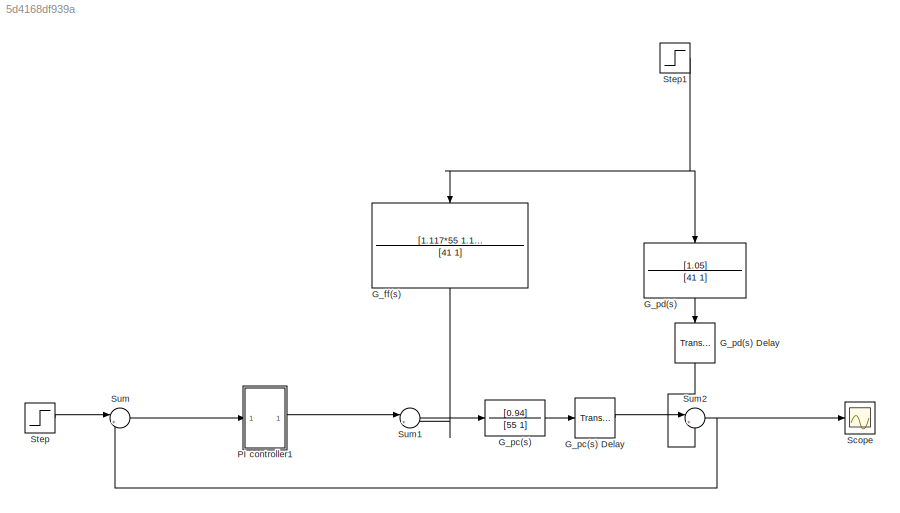
MODEL slx_5d4168df939a
KIND model
CONFIG AbsTol = auto
CONFIG EnableMultiTasking = off
CONFIG FixedStep = auto
CONFIG MaxStep = auto
CONFIG MinStep = auto
CONFIG RelTol = 1e-3
CONFIG SampleTimeConstraint = Unconstrained
CONFIG SolverName = VariableStepAuto
CONFIG StartTime = 0.0
CONFIG StopTime = 100.0
BLOCK [TransferFcn] G_ff(s) 
  Denominator = [41 1]
  NameLocation = left
  Numerator = [1.117*55 1.117]
BLOCK [TransferFcn] G_pc(s)
  Denominator = [55 1]
  Numerator = [0.94]
BLOCK [TransportDelay] G_pc(s) Delay
  DelayTime = 8
BLOCK [TransferFcn] G_pd(s)
  Denominator = [41 1]
  NameLocation = left
  Numerator = [1.05]
BLOCK [TransportDelay] G_pd(s) Delay
  DelayTime = 6
  NameLocation = left
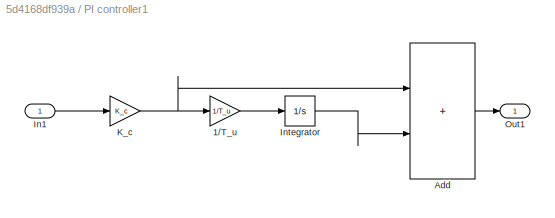
BLOCK [SubSystem] PI controller1
BLOCK [Gain] PI controller1/1//T_u
  Gain = 1/T_u
BLOCK [Sum] PI controller1/Add
  IconShape = rectangular
BLOCK [Inport] PI controller1/In1
BLOCK [Integrator] PI controller1/Integrator
BLOCK [Gain] PI controller1/K_c
  Gain = K_c
BLOCK [Outport] PI controller1/Out1
BLOCK [Scope] Scope
  Floating = off
  NumInputPorts = 1
  ScopeSpecificationString = Simulink.scopes.TimeScopeBlockCfg('CurrentConfiguration', extmgr.ConfigurationSet(extmgr.Configuration('Core','General UI',true),extmgr.Configuration('Core','Source UI',true),extmgr.Configuration('Sources','WiredSimulink',true),extmgr.Configuration('Visuals','Time Domain',true,'SerializedDisplays',{struct('MinYLimReal','-0.24935','MaxYLimReal','2.24416','YLabelReal','','MinYLimMag','0.00000','MaxY...<+1392ch>
BLOCK [Step] Step
  SampleTime = 0
BLOCK [Step] Step1
  SampleTime = 0
BLOCK [Sum] Sum
  Inputs = |+-
BLOCK [Sum] Sum1
  Inputs = |++
BLOCK [Sum] Sum2
  Inputs = |++
LINE G_ff(s) :1 -> Sum1:2
LINE G_pc(s) Delay:1 -> Sum2:1
LINE G_pc(s):1 -> G_pc(s) Delay:1
LINE G_pd(s) Delay:1 -> Sum2:2
LINE G_pd(s):1 -> G_pd(s) Delay:1
LINE PI controller1/1//T_u:1 -> PI controller1/Integrator:1
LINE PI controller1/Add:1 -> PI controller1/Out1:1
LINE PI controller1/In1:1 -> PI controller1/K_c:1
LINE PI controller1/Integrator:1 -> PI controller1/Add:2
NET PI controller1/K_c:1 -> PI controller1/1//T_u:1, PI controller1/Add:1
LINE PI controller1:1 -> Sum1:1
NET Step1:1 -> G_ff(s) :1, G_pd(s):1
LINE Step:1 -> Sum:1
LINE Sum1:1 -> G_pc(s):1
NET Sum2:1 -> Scope:1, Sum:2
LINE Sum:1 -> PI controller1:1
note: NET lines group one-source signal fan-out (src -> all destinations, sorted); 1:1 wires keep LINE
